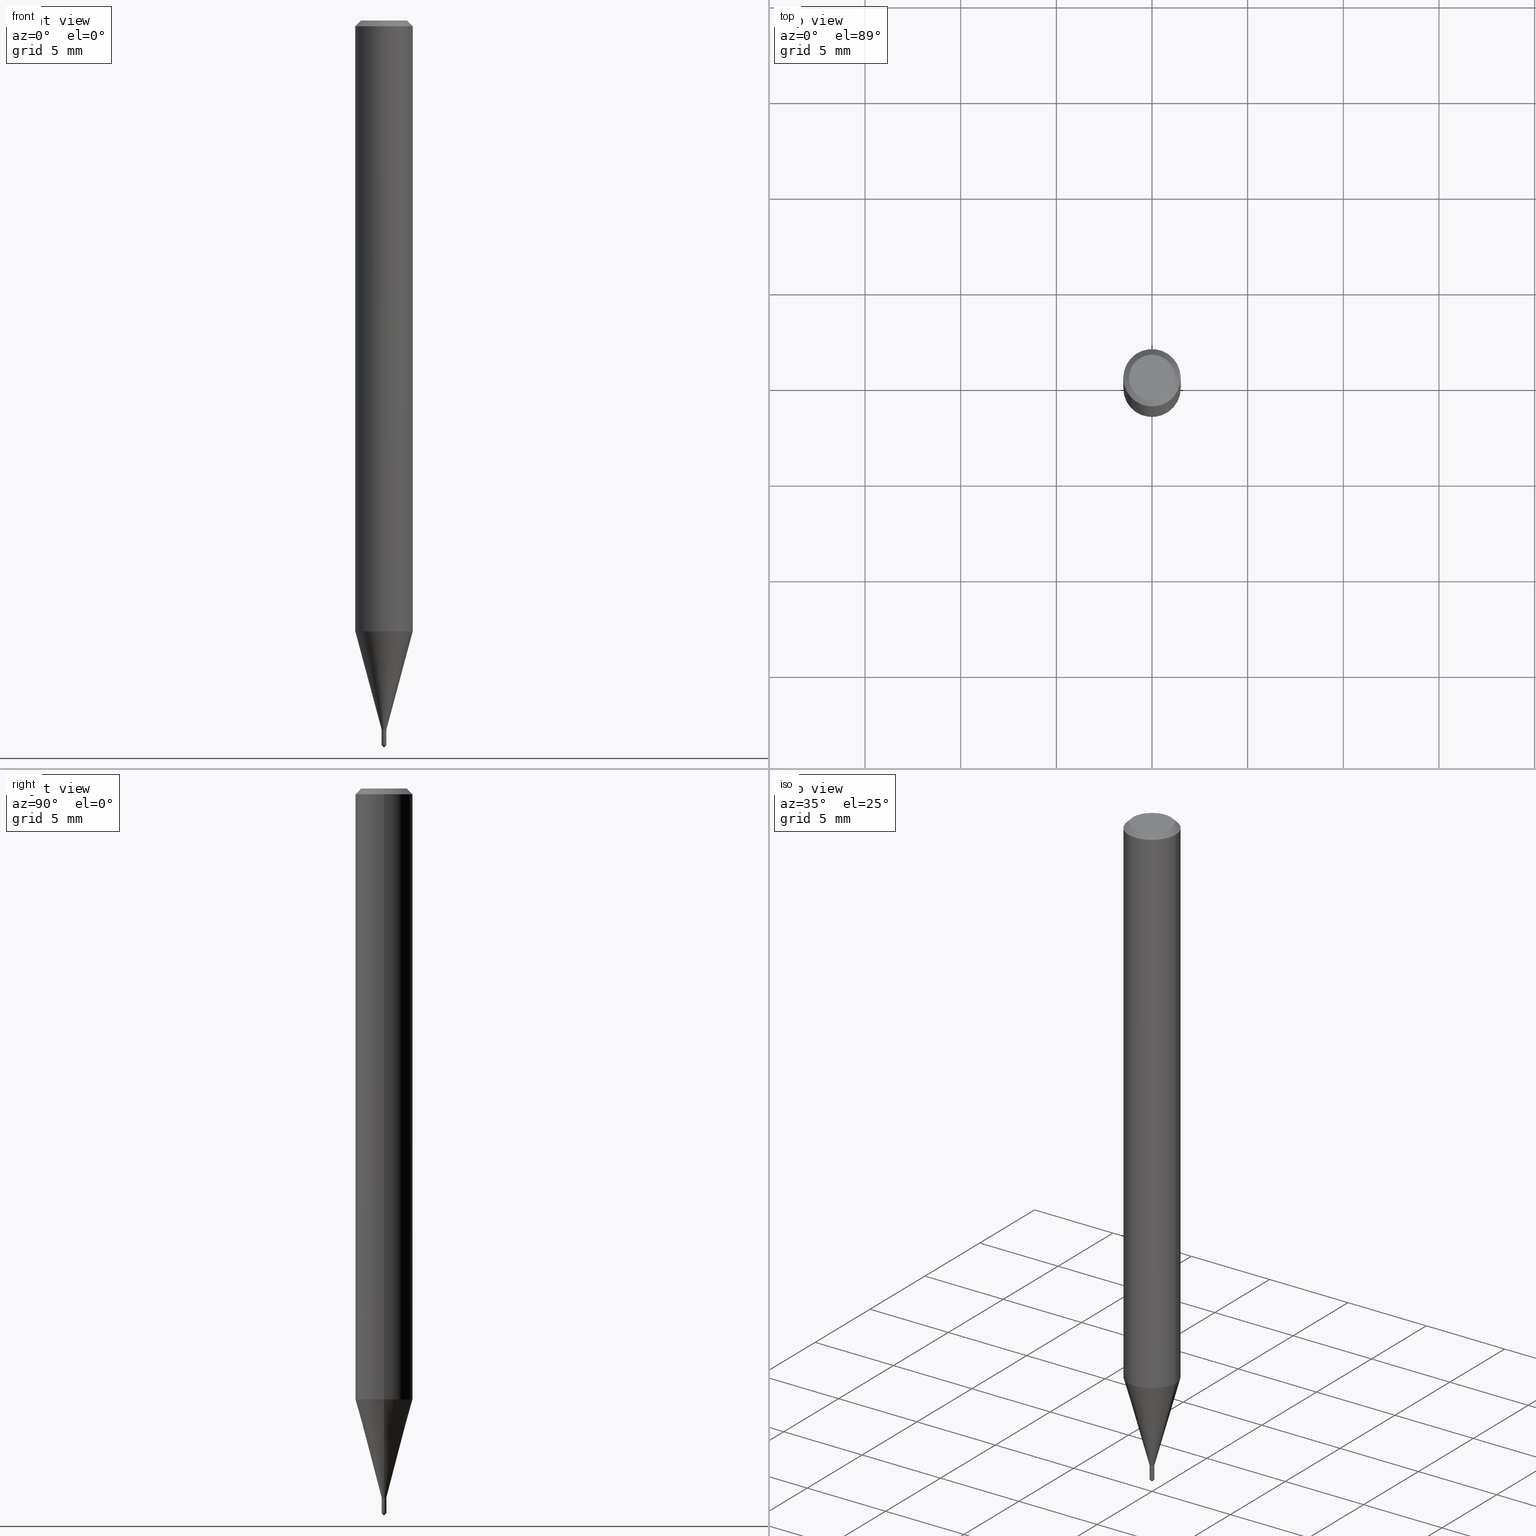
[diagram: canonical four-view strip — front | top / right | iso, engineering-drawing reading convention]
A machine part, canonical four-view strip (front | top / right | iso — engineering-drawing reading convention). The complete STEP part file that produces these views, byte-faithful:
ISO-10303-21;
HEADER;
FILE_DESCRIPTION (( 'STEP AP203' ),
    '1' );
FILE_NAME ('07033.STEP',
    '2024-04-23T19:20:42',
    ( '' ),
    ( '' ),
    'SwSTEP 2.0',
    'SolidWorks 2023',
    '' );
FILE_SCHEMA (( 'CONFIG_CONTROL_DESIGN' ));
ENDSEC;

DATA;
#1 = CALENDAR_DATE ( 2024, 23, 4 ) ;
#2 = CC_DESIGN_PERSON_AND_ORGANIZATION_ASSIGNMENT ( #152, #302, ( #73 ) ) ;
#3 = DIRECTION ( 'NONE',  ( -2.445468806185136597E-29, 3.491481338843145583E-15, 1.000000000000000000 ) ) ;
#4 = PERSON_AND_ORGANIZATION_ROLE ( 'classification_officer' ) ;
#5 = APPROVAL_PERSON_ORGANIZATION ( #418, #369, #118 ) ;
#6 = CARTESIAN_POINT ( 'NONE',  ( -0.05904999999999999832, 3.711095515056362547E-16, -0.01181000000000007565 ) ) ;
#7 = LINE ( 'NONE', #385, #121 ) ;
#8 = ADVANCED_FACE ( 'NONE', ( #34 ), #115, .T. ) ;
#9 = DIRECTION ( 'NONE',  ( 1.000000000000000000, -6.982962677686289588E-15, 0.000000000000000000 ) ) ;
#10 = DIRECTION ( 'NONE',  ( 2.445468806185136597E-29, -3.491481338843145583E-15, -1.000000000000000000 ) ) ;
#11 = AXIS2_PLACEMENT_3D ( 'NONE', #470, #462, #465 ) ;
#12 = VECTOR ( 'NONE', #53, 39.37007874015748143 ) ;
#13 = CARTESIAN_POINT ( 'NONE',  ( -9.506905849771238472E-28, 1.287285740973184145E-13, 37.87397874015748300 ) ) ;
#14 = VERTEX_POINT ( 'NONE', #303 ) ;
#15 = CARTESIAN_POINT ( 'NONE',  ( 3.648582361024890437E-29, -5.203777099372758603E-15, -1.491199999999999859 ) ) ;
#16 = ORIENTED_EDGE ( 'NONE', *, *, #458, .T. ) ;
#17 = LINE ( 'NONE', #48, #468 ) ;
#18 = ORIENTED_EDGE ( 'NONE', *, *, #438, .F. ) ;
#19 = AXIS2_PLACEMENT_3D ( 'NONE', #123, #162, #317 ) ;
#20 = CARTESIAN_POINT ( 'NONE',  ( 0.004399999999999999398, -5.130731827430000937E-15, -1.460699999999999443 ) ) ;
#21 = ORIENTED_EDGE ( 'NONE', *, *, #406, .T. ) ;
#22 = EDGE_CURVE ( 'NONE', #321, #323, #414, .T. ) ;
#23 = APPLICATION_PROTOCOL_DEFINITION ( 'international standard', 'config_control_design', 1994, #444 ) ;
#24 = CARTESIAN_POINT ( 'NONE',  ( 0.05904999999999999832, -4.463468013801466955E-16, -0.01181000000000007565 ) ) ;
#25 = ADVANCED_FACE ( 'NONE', ( #31 ), #174, .F. ) ;
#26 = ORIENTED_EDGE ( 'NONE', *, *, #289, .F. ) ;
#27 = AXIS2_PLACEMENT_3D ( 'NONE', #231, #112, #425 ) ;
#28 = LOCAL_TIME ( 15, 20, 42.00000000000000000, #78 ) ;
#29 = APPROVAL_STATUS ( 'not_yet_approved' ) ;
#30 = EDGE_CURVE ( 'NONE', #14, #338, #445, .T. ) ;
#31 = FACE_OUTER_BOUND ( 'NONE', #358, .T. ) ;
#32 = APPLICATION_PROTOCOL_DEFINITION ( 'international standard', 'config_control_design', 1994, #216 ) ;
#33 = ORIENTED_EDGE ( 'NONE', *, *, #77, .F. ) ;
#34 = FACE_OUTER_BOUND ( 'NONE', #408, .T. ) ;
#35 = APPROVAL_STATUS ( 'not_yet_approved' ) ;
#36 = LINE ( 'NONE', #388, #230 ) ;
#37 = ADVANCED_FACE ( 'NONE', ( #137 ), #293, .F. ) ;
#38 = FACE_OUTER_BOUND ( 'NONE', #51, .T. ) ;
#39 = COORDINATED_UNIVERSAL_TIME_OFFSET ( 5, 0, .BEHIND. ) ;
#40 = DIRECTION ( 'NONE',  ( 1.000000000000000000, -6.982962677686271444E-15, 0.000000000000000000 ) ) ;
#41 = CIRCLE ( 'NONE', #27, 0.004899999999999998107 ) ;
#42 = DIRECTION ( 'NONE',  ( 1.000000000000000000, -6.982962677686289588E-15, 0.000000000000000000 ) ) ;
#43 = FACE_OUTER_BOUND ( 'NONE', #109, .T. ) ;
#44 = EDGE_CURVE ( 'NONE', #397, #14, #254, .T. ) ;
#45 = FACE_OUTER_BOUND ( 'NONE', #207, .T. ) ;
#46 = VERTEX_POINT ( 'NONE', #335 ) ;
#47 = EDGE_CURVE ( 'NONE', #14, #323, #371, .T. ) ;
#48 = CARTESIAN_POINT ( 'NONE',  ( -0.004899999999999998107, 3.481659405224489566E-17, -2.410278194224902830E-31 ) ) ;
#49 = VERTEX_POINT ( 'NONE', #182 ) ;
#50 = AXIS2_PLACEMENT_3D ( 'NONE', #166, #282, #434 ) ;
#51 = EDGE_LOOP ( 'NONE', ( #367, #340, #202, #285 ) ) ;
#52 = CC_DESIGN_PERSON_AND_ORGANIZATION_ASSIGNMENT ( #474, #304, ( #132 ) ) ;
#53 = DIRECTION ( 'NONE',  ( -0.7071067811868112507, 7.493145998871307104E-15, 0.7071067811862837837 ) ) ;
#54 = DIRECTION ( 'NONE',  ( -1.000000000000000000, 6.982962677686266711E-15, 0.000000000000000000 ) ) ;
#55 = VERTEX_POINT ( 'NONE', #336 ) ;
#56 = DIRECTION ( 'NONE',  ( 1.000000000000000000, -6.982962677686289588E-15, 0.000000000000000000 ) ) ;
#57 = EDGE_CURVE ( 'NONE', #238, #442, #117, .T. ) ;
#58 = ORIENTED_EDGE ( 'NONE', *, *, #406, .F. ) ;
#59 = VERTEX_POINT ( 'NONE', #422 ) ;
#60 = DIRECTION ( 'NONE',  ( 1.000000000000000000, -6.982962677686265922E-15, 4.876176775795936353E-29 ) ) ;
#61 = ORIENTED_EDGE ( 'NONE', *, *, #136, .F. ) ;
#62 = CARTESIAN_POINT ( 'NONE',  ( 0.000000000000000000, 0.000000000000000000, 0.000000000000000000 ) ) ;
#63 = CARTESIAN_POINT ( 'NONE',  ( 3.572096285194628524E-29, -5.100006791648181685E-15, -1.460699999999999887 ) ) ;
#64 = AXIS2_PLACEMENT_3D ( 'NONE', #275, #467, #56 ) ;
#65 = CC_DESIGN_DATE_AND_TIME_ASSIGNMENT ( #111, #195, ( #122 ) ) ;
#66 = DIRECTION ( 'NONE',  ( 1.000000000000000000, -6.982962677686271444E-15, 0.000000000000000000 ) ) ;
#67 =( CONVERSION_BASED_UNIT ( 'INCH', #221 ) LENGTH_UNIT ( ) NAMED_UNIT ( #102 ) );
#68 = EDGE_LOOP ( 'NONE', ( #150, #134, #18, #466 ) ) ;
#69 = CALENDAR_DATE ( 2024, 23, 4 ) ;
#70 = DIRECTION ( 'NONE',  ( -2.507740191156117864E-29, 3.402305171297575552E-15, 1.000000000000000000 ) ) ;
#71 = ADVANCED_FACE ( 'NONE', ( #158 ), #451, .F. ) ;
#72 = CIRCLE ( 'NONE', #96, 0.004899999999999996372 ) ;
#73 = PRODUCT_DEFINITION_FORMATION_WITH_SPECIFIED_SOURCE ( 'ANY', '', #318, .NOT_KNOWN. ) ;
#74 = MANIFOLD_SOLID_BREP ( 'Body-Move/Copy2[1]', #402 ) ;
#75 = DIRECTION ( 'NONE',  ( -2.445468806185136877E-29, 3.491481338843145188E-15, 1.000000000000000000 ) ) ;
#76 = CARTESIAN_POINT ( 'NONE',  ( 3.572096285194627963E-29, -5.100006791648181685E-15, -1.460699999999999443 ) ) ;
#77 = EDGE_CURVE ( 'NONE', #49, #227, #179, .T. ) ;
#78 = COORDINATED_UNIVERSAL_TIME_OFFSET ( 5, 0, .BEHIND. ) ;
#79 = CARTESIAN_POINT ( 'NONE',  ( -0.05905000000000007465, 4.195754854663396902E-16, -2.904631170795525395E-30 ) ) ;
#80 = APPROVAL ( #29, 'UNSPECIFIED' ) ;
#81 = CIRCLE ( 'NONE', #370, 0.04724000000000000421 ) ;
#82 = DIRECTION ( 'NONE',  ( -2.445468806185136597E-29, 3.491481338843145583E-15, 1.000000000000000000 ) ) ;
#83 = DIRECTION ( 'NONE',  ( -2.507740191156118144E-29, 3.402305171297575158E-15, 1.000000000000000000 ) ) ;
#84 = EDGE_LOOP ( 'NONE', ( #375, #89, #26 ) ) ;
#85 = DIRECTION ( 'NONE',  ( 1.000000000000000000, -6.982962677686266711E-15, 0.000000000000000000 ) ) ;
#86 = CC_DESIGN_DATE_AND_TIME_ASSIGNMENT ( #310, #384, ( #132 ) ) ;
#87 = CARTESIAN_POINT ( 'NONE',  ( -0.004399999999999999398, -5.068742911274737565E-15, -1.460699999999999443 ) ) ;
#88 = CIRCLE ( 'NONE', #457, 0.05904999999999999832 ) ;
#89 = ORIENTED_EDGE ( 'NONE', *, *, #57, .T. ) ;
#90 = LINE ( 'NONE', #87, #12 ) ;
#91 = ORIENTED_EDGE ( 'NONE', *, *, #383, .T. ) ;
#92 = CARTESIAN_POINT ( 'NONE',  ( 0.004899999999999998107, -5.132477568099423229E-15, -1.460199999999999942 ) ) ;
#93 = ORIENTED_EDGE ( 'NONE', *, *, #316, .T. ) ;
#94 = EDGE_CURVE ( 'NONE', #288, #397, #7, .T. ) ;
#95 = DIRECTION ( 'NONE',  ( -2.445468806185136597E-29, 3.491481338843145583E-15, 1.000000000000000000 ) ) ;
#96 = AXIS2_PLACEMENT_3D ( 'NONE', #389, #239, #391 ) ;
#97 = AXIS2_PLACEMENT_3D ( 'NONE', #15, #322, #127 ) ;
#98 = DIRECTION ( 'NONE',  ( -2.445468806185136597E-29, 3.491481338843145583E-15, 1.000000000000000000 ) ) ;
#99 = DIRECTION ( 'NONE',  ( 1.000000000000000000, -6.982962677686265922E-15, 4.876176775795935793E-29 ) ) ;
#100 = EDGE_CURVE ( 'NONE', #55, #488, #36, .T. ) ;
#101 = LINE ( 'NONE', #255, #324 ) ;
#102 = DIMENSIONAL_EXPONENTS ( 1.000000000000000000, 0.000000000000000000, 0.000000000000000000, 0.000000000000000000, 0.000000000000000000, 0.000000000000000000, 0.000000000000000000 ) ;
#103 = ORIENTED_EDGE ( 'NONE', *, *, #473, .F. ) ;
#104 = PERSON_AND_ORGANIZATION ( #235, #423 ) ;
#105 = EDGE_LOOP ( 'NONE', ( #416, #163, #110, #103 ) ) ;
#106 = VECTOR ( 'NONE', #284, 39.37007874015748854 ) ;
#107 = CC_DESIGN_APPROVAL ( #369, ( #122 ) ) ;
#108 = LINE ( 'NONE', #437, #128 ) ;
#109 = EDGE_LOOP ( 'NONE', ( #319, #471, #259, #283 ) ) ;
#110 = ORIENTED_EDGE ( 'NONE', *, *, #450, .F. ) ;
#111 = DATE_AND_TIME ( #156, #28 ) ;
#112 = DIRECTION ( 'NONE',  ( -2.445468806185136597E-29, 3.491481338843145583E-15, 1.000000000000000000 ) ) ;
#113 = SECURITY_CLASSIFICATION_LEVEL ( 'unclassified' ) ;
#114 = DIRECTION ( 'NONE',  ( -6.982962677686265922E-15, -1.000000000000000000, 0.000000000000000000 ) ) ;
#115 = CONICAL_SURFACE ( 'NONE', #485, 0.05904999999999999832, 0.7853981633974450594 ) ;
#116 = LOCAL_TIME ( 15, 20, 42.00000000000000000, #345 ) ;
#117 = LINE ( 'NONE', #349, #267 ) ;
#118 = APPROVAL_ROLE ( '' ) ;
#119 = LINE ( 'NONE', #271, #106 ) ;
#120 = DIRECTION ( 'NONE',  ( 1.000000000000000000, -6.982962677686196502E-15, 0.000000000000000000 ) ) ;
#121 = VECTOR ( 'NONE', #75, 39.37007874015748143 ) ;
#122 = SECURITY_CLASSIFICATION ( '', '', #113 ) ;
#123 = CARTESIAN_POINT ( 'NONE',  ( 3.568428081985351240E-29, -5.094769569639917175E-15, -1.459199999999999831 ) ) ;
#124 = CARTESIAN_POINT ( 'NONE',  ( 0.05904999999999999832, -4.535783407291118600E-16, -0.01181000000000007565 ) ) ;
#125 = CARTESIAN_POINT ( 'NONE',  ( 2.888098660104664642E-31, -4.123439461173780879E-17, -0.01181000000000007565 ) ) ;
#126 = ORIENTED_EDGE ( 'NONE', *, *, #461, .F. ) ;
#127 = DIRECTION ( 'NONE',  ( -6.982962677686265922E-15, -1.000000000000000000, 0.000000000000000000 ) ) ;
#128 = VECTOR ( 'NONE', #290, 39.37007874015748143 ) ;
#129 = ORIENTED_EDGE ( 'NONE', *, *, #44, .T. ) ;
#130 = DIRECTION ( 'NONE',  ( 1.000000000000000000, -6.982962677686266711E-15, 4.876176775795936353E-29 ) ) ;
#131 = ORIENTED_EDGE ( 'NONE', *, *, #136, .T. ) ;
#132 = PRODUCT_DEFINITION ( 'UNKNOWN', '', #73, #176 ) ;
#133 = DIRECTION ( 'NONE',  ( 1.000000000000000000, -6.982962677686266711E-15, 0.000000000000000000 ) ) ;
#134 = ORIENTED_EDGE ( 'NONE', *, *, #400, .T. ) ;
#135 = DIRECTION ( 'NONE',  ( 0.000000000000000000, 0.000000000000000000, 1.000000000000000000 ) ) ;
#136 = EDGE_CURVE ( 'NONE', #211, #186, #353, .T. ) ;
#137 = FACE_OUTER_BOUND ( 'NONE', #206, .T. ) ;
#138 = CONICAL_SURFACE ( 'NONE', #291, 0.004399999999999999398, 0.7853981633978213139 ) ;
#139 = CIRCLE ( 'NONE', #161, 0.04724000000000000421 ) ;
#140 =( NAMED_UNIT ( * ) SI_UNIT ( $, .STERADIAN. ) SOLID_ANGLE_UNIT ( ) );
#141 = CC_DESIGN_PERSON_AND_ORGANIZATION_ASSIGNMENT ( #190, #4, ( #122 ) ) ;
#142 = ORIENTED_EDGE ( 'NONE', *, *, #170, .T. ) ;
#143 = DIRECTION ( 'NONE',  ( -2.445468806185136877E-29, 3.491481338843145188E-15, 1.000000000000000000 ) ) ;
#144 = COORDINATED_UNIVERSAL_TIME_OFFSET ( 5, 0, .BEHIND. ) ;
#145 = ORIENTED_EDGE ( 'NONE', *, *, #30, .F. ) ;
#146 = FACE_OUTER_BOUND ( 'NONE', #165, .T. ) ;
#147 = DIRECTION ( 'NONE',  ( 6.982962677686265922E-15, 1.000000000000000000, -3.402305171297575552E-15 ) ) ;
#148 = ADVANCED_FACE ( 'NONE', ( #272 ), #203, .T. ) ;
#149 = APPROVAL_ROLE ( '' ) ;
#150 = ORIENTED_EDGE ( 'NONE', *, *, #77, .T. ) ;
#151 = CARTESIAN_POINT ( 'NONE',  ( 3.568428081985351240E-29, -5.094769569639917175E-15, -1.459199999999999831 ) ) ;
#152 = PERSON_AND_ORGANIZATION ( #235, #423 ) ;
#153 = DIRECTION ( 'NONE',  ( 1.000000000000000000, -6.982962677686266711E-15, 4.876176775795936353E-29 ) ) ;
#154 = AXIS2_PLACEMENT_3D ( 'NONE', #346, #3, #153 ) ;
#155 = CIRCLE ( 'NONE', #50, 0.004899999999999998107 ) ;
#156 = CALENDAR_DATE ( 2024, 23, 4 ) ;
#157 = DIRECTION ( 'NONE',  ( -2.445468806185136597E-29, 3.491481338843145583E-15, 1.000000000000000000 ) ) ;
#158 = FACE_OUTER_BOUND ( 'NONE', #355, .T. ) ;
#159 = DIRECTION ( 'NONE',  ( -1.000000000000000000, 6.982962677686265922E-15, -4.876176775795935793E-29 ) ) ;
#160 = CONICAL_SURFACE ( 'NONE', #363, 39.37007874015645825, 0.7853981633974352894 ) ;
#161 = AXIS2_PLACEMENT_3D ( 'NONE', #249, #98, #253 ) ;
#162 = DIRECTION ( 'NONE',  ( -2.445468806185136597E-29, 3.491481338843145583E-15, 1.000000000000000000 ) ) ;
#163 = ORIENTED_EDGE ( 'NONE', *, *, #100, .T. ) ;
#164 = FACE_OUTER_BOUND ( 'NONE', #105, .T. ) ;
#165 = EDGE_LOOP ( 'NONE', ( #257, #430, #362, #326 ) ) ;
#166 = CARTESIAN_POINT ( 'NONE',  ( 3.570873550791536843E-29, -5.098261050978760971E-15, -1.460199999999999942 ) ) ;
#167 = EDGE_CURVE ( 'NONE', #59, #288, #41, .T. ) ;
#168 = ORIENTED_EDGE ( 'NONE', *, *, #47, .F. ) ;
#169 = CARTESIAN_POINT ( 'NONE',  ( -0.05905000000000015098, -3.969598695798013952E-15, -1.257109448770144855 ) ) ;
#170 = EDGE_CURVE ( 'NONE', #227, #49, #194, .T. ) ;
#171 = DIRECTION ( 'NONE',  ( -2.445468806185136597E-29, 3.491481338843145583E-15, 1.000000000000000000 ) ) ;
#172 = ORIENTED_EDGE ( 'NONE', *, *, #327, .F. ) ;
#173 = PERSON_AND_ORGANIZATION ( #235, #423 ) ;
#174 = PLANE ( 'NONE',  #421 ) ;
#175 = EDGE_CURVE ( 'NONE', #338, #14, #454, .T. ) ;
#176 = DESIGN_CONTEXT ( 'detailed design', #216, 'design' ) ;
#177 = VECTOR ( 'NONE', #368, 39.37007874015748143 ) ;
#178 = EDGE_LOOP ( 'NONE', ( #382, #142, #93, #447 ) ) ;
#179 = CIRCLE ( 'NONE', #333, 0.004399999999999999398 ) ;
#180 = CIRCLE ( 'NONE', #97, 0.004899999999999996372 ) ;
#181 = DIRECTION ( 'NONE',  ( -6.982962677686265922E-15, -1.000000000000000000, 0.000000000000000000 ) ) ;
#182 = CARTESIAN_POINT ( 'NONE',  ( 0.004399999999999999398, -5.130731827430000937E-15, -1.460699999999999443 ) ) ;
#183 = CALENDAR_DATE ( 2024, 23, 4 ) ;
#184 = DIRECTION ( 'NONE',  ( 0.7071067811865452413, -7.319954787623248157E-15, -0.7071067811865497932 ) ) ;
#185 = EDGE_CURVE ( 'NONE', #338, #186, #426, .T. ) ;
#186 = VERTEX_POINT ( 'NONE', #196 ) ;
#187 = VECTOR ( 'NONE', #361, 39.37007874015748143 ) ;
#188 = LOCAL_TIME ( 15, 20, 42.00000000000000000, #144 ) ;
#189 = DIRECTION ( 'NONE',  ( -2.445468806185136597E-29, 3.491481338843145583E-15, 1.000000000000000000 ) ) ;
#190 = PERSON_AND_ORGANIZATION ( #235, #423 ) ;
#191 = CARTESIAN_POINT ( 'NONE',  ( 3.572096285194627963E-29, -5.100006791648181685E-15, -1.460699999999999443 ) ) ;
#192 = PERSON_AND_ORGANIZATION ( #235, #423 ) ;
#193 = CARTESIAN_POINT ( 'NONE',  ( 3.568428081985351240E-29, -5.094769569639917175E-15, -1.459199999999999831 ) ) ;
#194 = CIRCLE ( 'NONE', #273, 0.004399999999999999398 ) ;
#195 = DATE_TIME_ROLE ( 'classification_date' ) ;
#196 = CARTESIAN_POINT ( 'NONE',  ( -0.05904999999999999832, -1.795628802471705305E-15, -0.01181000000000007565 ) ) ;
#197 = CARTESIAN_POINT ( 'NONE',  ( 4.132873053354867254E-48, -5.900647395337818946E-34, -1.690012582823346072E-19 ) ) ;
#198 = UNCERTAINTY_MEASURE_WITH_UNIT (LENGTH_MEASURE( 1.000000000000000082E-05 ), #67, 'distance_accuracy_value', 'NONE');
#199 = ADVANCED_FACE ( 'NONE', ( #424 ), #138, .T. ) ;
#200 = FACE_OUTER_BOUND ( 'NONE', #68, .T. ) ;
#201 = CC_DESIGN_PERSON_AND_ORGANIZATION_ASSIGNMENT ( #173, #330, ( #318 ) ) ;
#202 = ORIENTED_EDGE ( 'NONE', *, *, #473, .T. ) ;
#203 = CONICAL_SURFACE ( 'NONE', #392, 0.004899999999999998107, 0.2617993877991497964 ) ;
#204 = LOCAL_TIME ( 15, 20, 42.00000000000000000, #228 ) ;
#205 = DIRECTION ( 'NONE',  ( -2.445468806185136877E-29, 3.491481338843145188E-15, 1.000000000000000000 ) ) ;
#206 = EDGE_LOOP ( 'NONE', ( #33, #472 ) ) ;
#207 = EDGE_LOOP ( 'NONE', ( #479, #217, #131, #390 ) ) ;
#208 = PRODUCT_DEFINITION_SHAPE ( 'NONE', 'NONE',  #132 ) ;
#209 = DIRECTION ( 'NONE',  ( -6.982962677686265922E-15, -1.000000000000000000, 0.000000000000000000 ) ) ;
#210 = DIRECTION ( 'NONE',  ( -6.982962677686265922E-15, -1.000000000000000000, 0.000000000000000000 ) ) ;
#211 = VERTEX_POINT ( 'NONE', #264 ) ;
#212 = FACE_OUTER_BOUND ( 'NONE', #393, .T. ) ;
#213 = AXIS2_PLACEMENT_3D ( 'NONE', #197, #419, #159 ) ;
#214 = APPROVAL_PERSON_ORGANIZATION ( #104, #80, #372 ) ;
#215 = ORIENTED_EDGE ( 'NONE', *, *, #286, .T. ) ;
#216 = APPLICATION_CONTEXT ( 'configuration controlled 3d designs of mechanical parts and assemblies' ) ;
#217 = ORIENTED_EDGE ( 'NONE', *, *, #274, .F. ) ;
#218 = ADVANCED_FACE ( 'NONE', ( #38 ), #490, .T. ) ;
#219 = DIRECTION ( 'NONE',  ( 1.000000000000000000, -6.982962677686265922E-15, 4.876176775795936353E-29 ) ) ;
#220 = DIRECTION ( 'NONE',  ( 2.445468806185136597E-29, -3.491481338843145583E-15, -1.000000000000000000 ) ) ;
#221 = LENGTH_MEASURE_WITH_UNIT ( LENGTH_MEASURE( 0.02539999999999999897 ), #296 );
#222 = CARTESIAN_POINT ( 'NONE',  ( 0.004899999999999998107, -5.128986086760580222E-15, -1.459199999999999831 ) ) ;
#223 = CC_DESIGN_APPROVAL ( #80, ( #132 ) ) ;
#224 = ORIENTED_EDGE ( 'NONE', *, *, #313, .T. ) ;
#225 = CARTESIAN_POINT ( 'NONE',  ( 3.572096285194628524E-29, -5.100006791648181685E-15, -1.460699999999999887 ) ) ;
#226 = ADVANCED_FACE ( 'NONE', ( #43 ), #229, .T. ) ;
#227 = VERTEX_POINT ( 'NONE', #307 ) ;
#228 = COORDINATED_UNIVERSAL_TIME_OFFSET ( 5, 0, .BEHIND. ) ;
#229 = CYLINDRICAL_SURFACE ( 'NONE', #154, 0.05905000000000007465 ) ;
#230 = VECTOR ( 'NONE', #70, 39.37007874015748143 ) ;
#231 = CARTESIAN_POINT ( 'NONE',  ( 3.570873550791536843E-29, -5.098261050978760971E-15, -1.460199999999999942 ) ) ;
#232 = CARTESIAN_POINT ( 'NONE',  ( 3.572096285194627963E-29, -5.100006791648181685E-15, -1.460699999999999443 ) ) ;
#233 = CARTESIAN_POINT ( 'NONE',  ( 3.074221942927981307E-29, -4.389174181264353445E-15, -1.257109448770144855 ) ) ;
#234 = VECTOR ( 'NONE', #312, 39.37007874015748143 ) ;
#235 = PERSON ( 'UNSPECIFIED', 'UNSPECIFIED', 'UNSPECIFIED', ('UNSPECIFIED'), ('UNSPECIFIED'), ('UNSPECIFIED') ) ;
#236 = CARTESIAN_POINT ( 'NONE',  ( 3.572096285194628524E-29, -5.100006791648181685E-15, -1.460699999999999887 ) ) ;
#237 = CARTESIAN_POINT ( 'NONE',  ( 0.04724000000000000421, -3.852183633974369345E-16, -3.380025165621689721E-19 ) ) ;
#238 = VERTEX_POINT ( 'NONE', #305 ) ;
#239 = DIRECTION ( 'NONE',  ( -2.507740191156118144E-29, 3.402305171297575158E-15, 1.000000000000000000 ) ) ;
#240 = ORIENTED_EDGE ( 'NONE', *, *, #167, .T. ) ;
#241 = AXIS2_PLACEMENT_3D ( 'NONE', #233, #157, #40 ) ;
#242 = CC_DESIGN_APPROVAL ( #278, ( #73 ) ) ;
#243 = AXIS2_PLACEMENT_3D ( 'NONE', #225, #404, #181 ) ;
#244 = FACE_OUTER_BOUND ( 'NONE', #359, .T. ) ;
#245 = ORIENTED_EDGE ( 'NONE', *, *, #44, .F. ) ;
#246 = CARTESIAN_POINT ( 'NONE',  ( 2.888098660104664642E-31, -4.123439461173780879E-17, -0.01181000000000007565 ) ) ;
#247 = EDGE_LOOP ( 'NONE', ( #91, #399, #145, #245 ) ) ;
#248 = CARTESIAN_POINT ( 'NONE',  ( -9.506905849771238472E-28, 1.287285740973184145E-13, 37.87397874015748300 ) ) ;
#249 = CARTESIAN_POINT ( 'NONE',  ( 8.265746106709734507E-48, -1.180129479067563789E-33, -3.380025165646692144E-19 ) ) ;
#250 = CIRCLE ( 'NONE', #11, 0.004899999999999998107 ) ;
#251 = CIRCLE ( 'NONE', #243, 0.004899999999999999842 ) ;
#252 = ORIENTED_EDGE ( 'NONE', *, *, #175, .F. ) ;
#253 = DIRECTION ( 'NONE',  ( 1.000000000000000000, -6.982962677686266711E-15, 4.876185090822587894E-29 ) ) ;
#254 = LINE ( 'NONE', #222, #177 ) ;
#255 = CARTESIAN_POINT ( 'NONE',  ( -0.004899999999999998107, -5.059952975587672945E-15, -1.459199999999999831 ) ) ;
#256 = EDGE_LOOP ( 'NONE', ( #172, #240, #295, #405 ) ) ;
#257 = ORIENTED_EDGE ( 'NONE', *, *, #438, .T. ) ;
#258 = AXIS2_PLACEMENT_3D ( 'NONE', #236, #379, #114 ) ;
#259 = ORIENTED_EDGE ( 'NONE', *, *, #47, .T. ) ;
#260 = LOCAL_TIME ( 15, 20, 42.00000000000000000, #39 ) ;
#261 = FACE_OUTER_BOUND ( 'NONE', #256, .T. ) ;
#262 = ORIENTED_EDGE ( 'NONE', *, *, #57, .F. ) ;
#263 = SHAPE_DEFINITION_REPRESENTATION ( #208, #268 ) ;
#264 = CARTESIAN_POINT ( 'NONE',  ( -0.04724000000000000421, 3.504923541997677355E-16, -3.380025165670481712E-19 ) ) ;
#265 = FACE_OUTER_BOUND ( 'NONE', #247, .T. ) ;
#266 = ADVANCED_FACE ( 'NONE', ( #265 ), #387, .T. ) ;
#267 = VECTOR ( 'NONE', #314, 39.37007874015748854 ) ;
#268 = ADVANCED_BREP_SHAPE_REPRESENTATION ( '07033', ( #74, #417, #292 ), #455 ) ;
#269 = CIRCLE ( 'NONE', #19, 0.004899999999999998107 ) ;
#270 = DIRECTION ( 'NONE',  ( 1.000000000000000000, -6.982962677686196502E-15, 0.000000000000000000 ) ) ;
#271 = CARTESIAN_POINT ( 'NONE',  ( 3.753425320352740222E-29, -5.090188766778301737E-15, -1.496099999999999985 ) ) ;
#272 = FACE_OUTER_BOUND ( 'NONE', #331, .T. ) ;
#273 = AXIS2_PLACEMENT_3D ( 'NONE', #76, #189, #9 ) ;
#274 = EDGE_CURVE ( 'NONE', #211, #321, #81, .T. ) ;
#275 = CARTESIAN_POINT ( 'NONE',  ( 3.572096285194627963E-29, -5.100006791648181685E-15, -1.460699999999999443 ) ) ;
#276 = DIRECTION ( 'NONE',  ( -2.445468806185136597E-29, 3.491481338843145583E-15, 1.000000000000000000 ) ) ;
#277 = DIRECTION ( 'NONE',  ( -2.507740191156118144E-29, 3.402305171297575158E-15, 1.000000000000000000 ) ) ;
#278 = APPROVAL ( #35, 'UNSPECIFIED' ) ;
#279 = ORIENTED_EDGE ( 'NONE', *, *, #458, .F. ) ;
#280 = CONICAL_SURFACE ( 'NONE', #64, 0.004399999999999999398, 0.7853981633978213139 ) ;
#281 = CC_DESIGN_SECURITY_CLASSIFICATION ( #122, ( #73 ) ) ;
#282 = DIRECTION ( 'NONE',  ( -2.445468806185136597E-29, 3.491481338843145583E-15, 1.000000000000000000 ) ) ;
#283 = ORIENTED_EDGE ( 'NONE', *, *, #440, .F. ) ;
#284 = DIRECTION ( 'NONE',  ( 5.024295867787996125E-15, 0.7071067811865406894, 0.7071067811865542341 ) ) ;
#285 = ORIENTED_EDGE ( 'NONE', *, *, #313, .F. ) ;
#286 = EDGE_CURVE ( 'NONE', #238, #55, #119, .T. ) ;
#287 = CARTESIAN_POINT ( 'NONE',  ( -3.421651712062619307E-17, -0.004900000000005199675, -1.491199999999999859 ) ) ;
#288 = VERTEX_POINT ( 'NONE', #92 ) ;
#289 = EDGE_CURVE ( 'NONE', #55, #442, #72, .T. ) ;
#290 = DIRECTION ( 'NONE',  ( -2.507740191156117864E-29, 3.402305171297575552E-15, 1.000000000000000000 ) ) ;
#291 = AXIS2_PLACEMENT_3D ( 'NONE', #232, #82, #42 ) ;
#292 = AXIS2_PLACEMENT_3D ( 'NONE', #62, #135, #366 ) ;
#293 = PLANE ( 'NONE',  #394 ) ;
#294 = CARTESIAN_POINT ( 'NONE',  ( 3.481659405228136815E-17, 0.004899999999994899755, -1.460699999999999887 ) ) ;
#295 = ORIENTED_EDGE ( 'NONE', *, *, #94, .T. ) ;
#296 =( LENGTH_UNIT ( ) NAMED_UNIT ( * ) SI_UNIT ( $, .METRE. ) );
#297 = CARTESIAN_POINT ( 'NONE',  ( 2.888098660104664642E-31, -4.123439461173780879E-17, -0.01181000000000007565 ) ) ;
#298 = CC_DESIGN_PERSON_AND_ORGANIZATION_ASSIGNMENT ( #348, #448, ( #73 ) ) ;
#299 = DIRECTION ( 'NONE',  ( -0.2588190451025211281, 5.211531920934548675E-15, 0.9659258262890682012 ) ) ;
#300 = CONICAL_SURFACE ( 'NONE', #315, 0.05904999999999999832, 0.7853981633974450594 ) ;
#301 = DIRECTION ( 'NONE',  ( -2.445468806185136597E-29, 3.491481338843145583E-15, 1.000000000000000000 ) ) ;
#302 = PERSON_AND_ORGANIZATION_ROLE ( 'creator' ) ;
#303 = CARTESIAN_POINT ( 'NONE',  ( 0.05905000000000015098, -4.801518127381729154E-15, -1.257109448770144855 ) ) ;
#304 = PERSON_AND_ORGANIZATION_ROLE ( 'creator' ) ;
#305 = CARTESIAN_POINT ( 'NONE',  ( 3.751830099988668308E-29, -5.090188766778301737E-15, -1.496099999999999985 ) ) ;
#306 = CALENDAR_DATE ( 2024, 23, 4 ) ;
#307 = CARTESIAN_POINT ( 'NONE',  ( -0.004399999999999999398, -5.066093684100626364E-15, -1.460699999999999443 ) ) ;
#308 = VECTOR ( 'NONE', #386, 39.37007874015748143 ) ;
#309 = AXIS2_PLACEMENT_3D ( 'NONE', #354, #171, #130 ) ;
#310 = DATE_AND_TIME ( #69, #260 ) ;
#311 = CARTESIAN_POINT ( 'NONE',  ( 8.265746106709734507E-48, -1.180129479067563789E-33, -3.380025165646692144E-19 ) ) ;
#312 = DIRECTION ( 'NONE',  ( -0.7071067811865452413, 2.468850131082233000E-15, -0.7071067811865497932 ) ) ;
#313 = EDGE_CURVE ( 'NONE', #488, #46, #439, .T. ) ;
#314 = DIRECTION ( 'NONE',  ( -4.937700262164483356E-15, -0.7071067811865358044, 0.7071067811865591191 ) ) ;
#315 = AXIS2_PLACEMENT_3D ( 'NONE', #325, #10, #54 ) ;
#316 = EDGE_CURVE ( 'NONE', #49, #288, #428, .T. ) ;
#317 = DIRECTION ( 'NONE',  ( 1.000000000000000000, -6.982962677686196502E-15, 0.000000000000000000 ) ) ;
#318 = PRODUCT ( '07033', '07033', '', ( #410 ) ) ;
#319 = ORIENTED_EDGE ( 'NONE', *, *, #185, .F. ) ;
#320 = CARTESIAN_POINT ( 'NONE',  ( 3.572096285194628524E-29, -5.100006791648181685E-15, -1.460699999999999887 ) ) ;
#321 = VERTEX_POINT ( 'NONE', #237 ) ;
#322 = DIRECTION ( 'NONE',  ( -2.507740191156118144E-29, 3.402305171297575158E-15, 1.000000000000000000 ) ) ;
#323 = VERTEX_POINT ( 'NONE', #124 ) ;
#324 = VECTOR ( 'NONE', #299, 39.37007874015748143 ) ;
#325 = CARTESIAN_POINT ( 'NONE',  ( 2.888098660104664642E-31, -4.123439461173780879E-17, -0.01181000000000007565 ) ) ;
#326 = ORIENTED_EDGE ( 'NONE', *, *, #94, .F. ) ;
#327 = EDGE_CURVE ( 'NONE', #59, #469, #17, .T. ) ;
#328 = ORIENTED_EDGE ( 'NONE', *, *, #274, .T. ) ;
#329 = ADVANCED_FACE ( 'NONE', ( #436 ), #378, .T. ) ;
#330 = PERSON_AND_ORGANIZATION_ROLE ( 'design_owner' ) ;
#331 = EDGE_LOOP ( 'NONE', ( #126, #365, #129, #252 ) ) ;
#332 = VECTOR ( 'NONE', #184, 39.37007874015748143 ) ;
#333 = AXIS2_PLACEMENT_3D ( 'NONE', #191, #381, #460 ) ;
#334 = AXIS2_PLACEMENT_3D ( 'NONE', #415, #95, #219 ) ;
#335 = CARTESIAN_POINT ( 'NONE',  ( -3.421651712062698194E-17, -0.004900000000005099061, -1.460699999999999887 ) ) ;
#336 = CARTESIAN_POINT ( 'NONE',  ( 3.481659405228136815E-17, 0.004899999999994793069, -1.491199999999999859 ) ) ;
#337 = DATE_AND_TIME ( #183, #188 ) ;
#338 = VERTEX_POINT ( 'NONE', #169 ) ;
#339 = AXIS2_PLACEMENT_3D ( 'NONE', #320, #429, #210 ) ;
#340 = ORIENTED_EDGE ( 'NONE', *, *, #289, .T. ) ;
#341 = AXIS2_PLACEMENT_3D ( 'NONE', #360, #277, #209 ) ;
#342 = ADVANCED_FACE ( 'NONE', ( #45 ), #300, .T. ) ;
#343 = DIRECTION ( 'NONE',  ( -2.445468806185136597E-29, 3.491481338843145583E-15, 1.000000000000000000 ) ) ;
#344 = ADVANCED_FACE ( 'NONE', ( #244 ), #160, .T. ) ;
#345 = COORDINATED_UNIVERSAL_TIME_OFFSET ( 5, 0, .BEHIND. ) ;
#346 = CARTESIAN_POINT ( 'NONE',  ( 0.000000000000000000, 0.000000000000000000, 0.000000000000000000 ) ) ;
#347 = ORIENTED_EDGE ( 'NONE', *, *, #30, .T. ) ;
#348 = PERSON_AND_ORGANIZATION ( #235, #423 ) ;
#349 = CARTESIAN_POINT ( 'NONE',  ( 3.569910475934442376E-29, -5.350708022645931072E-15, -1.496099999999999985 ) ) ;
#350 = APPROVAL_PERSON_ORGANIZATION ( #192, #278, #149 ) ;
#351 = DIRECTION ( 'NONE',  ( -2.445468806185136597E-29, 3.491481338843145583E-15, 1.000000000000000000 ) ) ;
#352 = ADVANCED_FACE ( 'NONE', ( #200 ), #280, .T. ) ;
#353 = LINE ( 'NONE', #6, #234 ) ;
#354 = CARTESIAN_POINT ( 'NONE',  ( 0.000000000000000000, 0.000000000000000000, 0.000000000000000000 ) ) ;
#355 = EDGE_LOOP ( 'NONE', ( #328, #16 ) ) ;
#356 = EDGE_CURVE ( 'NONE', #469, #397, #250, .T. ) ;
#357 = DIRECTION ( 'NONE',  ( -6.982962677686266711E-15, -1.000000000000000000, 3.552713678800593226E-15 ) ) ;
#358 = EDGE_LOOP ( 'NONE', ( #373, #224 ) ) ;
#359 = EDGE_LOOP ( 'NONE', ( #262, #215, #464 ) ) ;
#360 = CARTESIAN_POINT ( 'NONE',  ( 3.572096285194628524E-29, -5.100006791648181685E-15, -1.460699999999999887 ) ) ;
#361 = DIRECTION ( 'NONE',  ( 0.7071067811868112507, -2.468850131085019257E-15, 0.7071067811862837837 ) ) ;
#362 = ORIENTED_EDGE ( 'NONE', *, *, #383, .F. ) ;
#363 = AXIS2_PLACEMENT_3D ( 'NONE', #13, #364, #401 ) ;
#364 = DIRECTION ( 'NONE',  ( -2.507740191156118144E-29, 3.402305171297575158E-15, 1.000000000000000000 ) ) ;
#365 = ORIENTED_EDGE ( 'NONE', *, *, #356, .T. ) ;
#366 = DIRECTION ( 'NONE',  ( 1.000000000000000000, 0.000000000000000000, 0.000000000000000000 ) ) ;
#367 = ORIENTED_EDGE ( 'NONE', *, *, #100, .F. ) ;
#368 = DIRECTION ( 'NONE',  ( 0.2588190451025211281, 1.565188264969623940E-15, 0.9659258262890682012 ) ) ;
#369 = APPROVAL ( #380, 'UNSPECIFIED' ) ;
#370 = AXIS2_PLACEMENT_3D ( 'NONE', #311, #351, #459 ) ;
#371 = LINE ( 'NONE', #481, #476 ) ;
#372 = APPROVAL_ROLE ( '' ) ;
#373 = ORIENTED_EDGE ( 'NONE', *, *, #450, .T. ) ;
#374 = CARTESIAN_POINT ( 'NONE',  ( 0.000000000000000000, 0.000000000000000000, 0.000000000000000000 ) ) ;
#375 = ORIENTED_EDGE ( 'NONE', *, *, #286, .F. ) ;
#376 = ADVANCED_FACE ( 'NONE', ( #212 ), #396, .T. ) ;
#377 = APPROVAL_DATE_TIME ( #486, #278 ) ;
#378 = CONICAL_SURFACE ( 'NONE', #432, 39.37007874015645825, 0.7853981633974352894 ) ;
#379 = DIRECTION ( 'NONE',  ( -2.507740191156118144E-29, 3.402305171297575158E-15, 1.000000000000000000 ) ) ;
#380 = APPROVAL_STATUS ( 'not_yet_approved' ) ;
#381 = DIRECTION ( 'NONE',  ( -2.445468806185136597E-29, 3.491481338843145583E-15, 1.000000000000000000 ) ) ;
#382 = ORIENTED_EDGE ( 'NONE', *, *, #400, .F. ) ;
#383 = EDGE_CURVE ( 'NONE', #397, #469, #269, .T. ) ;
#384 = DATE_TIME_ROLE ( 'creation_date' ) ;
#385 = CARTESIAN_POINT ( 'NONE',  ( 0.004899999999999998107, -3.421651712066269022E-17, 2.389326620140007827E-31 ) ) ;
#386 = DIRECTION ( 'NONE',  ( -2.445468806185136877E-29, 3.491481338843145188E-15, 1.000000000000000000 ) ) ;
#387 = CONICAL_SURFACE ( 'NONE', #403, 0.004899999999999998107, 0.2617993877991497964 ) ;
#388 = CARTESIAN_POINT ( 'NONE',  ( 3.481659405228061010E-17, 0.004899999999994898887, -1.460699999999999887 ) ) ;
#389 = CARTESIAN_POINT ( 'NONE',  ( 3.648582361024890437E-29, -5.203777099372758603E-15, -1.491199999999999859 ) ) ;
#390 = ORIENTED_EDGE ( 'NONE', *, *, #440, .T. ) ;
#391 = DIRECTION ( 'NONE',  ( -6.982962677686265922E-15, -1.000000000000000000, 0.000000000000000000 ) ) ;
#392 = AXIS2_PLACEMENT_3D ( 'NONE', #151, #343, #120 ) ;
#393 = EDGE_LOOP ( 'NONE', ( #347, #433, #58, #168 ) ) ;
#394 = AXIS2_PLACEMENT_3D ( 'NONE', #411, #441, #99 ) ;
#395 = CIRCLE ( 'NONE', #487, 0.05904999999999999832 ) ;
#396 = CYLINDRICAL_SURFACE ( 'NONE', #309, 0.05905000000000007465 ) ;
#397 = VERTEX_POINT ( 'NONE', #463 ) ;
#398 = DIRECTION ( 'NONE',  ( -2.445468806185136597E-29, 3.491481338843145583E-15, 1.000000000000000000 ) ) ;
#399 = ORIENTED_EDGE ( 'NONE', *, *, #461, .T. ) ;
#400 = EDGE_CURVE ( 'NONE', #227, #59, #90, .T. ) ;
#401 = DIRECTION ( 'NONE',  ( -6.982962677686266711E-15, -1.000000000000000000, 3.552713678800593226E-15 ) ) ;
#402 = CLOSED_SHELL ( 'NONE', ( #427, #344, #329, #218, #25 ) ) ;
#403 = AXIS2_PLACEMENT_3D ( 'NONE', #193, #456, #270 ) ;
#404 = DIRECTION ( 'NONE',  ( -2.507740191156118144E-29, 3.402305171297575158E-15, 1.000000000000000000 ) ) ;
#405 = ORIENTED_EDGE ( 'NONE', *, *, #356, .F. ) ;
#406 = EDGE_CURVE ( 'NONE', #323, #186, #88, .T. ) ;
#407 = CYLINDRICAL_SURFACE ( 'NONE', #477, 0.004899999999999998107 ) ;
#408 = EDGE_LOOP ( 'NONE', ( #279, #449, #21, #61 ) ) ;
#409 = PRODUCT_RELATED_PRODUCT_CATEGORY ( 'detail', '', ( #318 ) ) ;
#410 = MECHANICAL_CONTEXT ( 'NONE', #444, 'mechanical' ) ;
#411 = CARTESIAN_POINT ( 'NONE',  ( 6.690138410991351740E-28, 8.559113785256521776E-14, -1.460699999999999443 ) ) ;
#412 = AXIS2_PLACEMENT_3D ( 'NONE', #443, #301, #66 ) ;
#413 = CYLINDRICAL_SURFACE ( 'NONE', #334, 0.004899999999999998107 ) ;
#414 = LINE ( 'NONE', #24, #332 ) ;
#415 = CARTESIAN_POINT ( 'NONE',  ( 0.000000000000000000, 0.000000000000000000, 0.000000000000000000 ) ) ;
#416 = ORIENTED_EDGE ( 'NONE', *, *, #435, .T. ) ;
#417 = MANIFOLD_SOLID_BREP ( 'Body-Move/Copy2[2]', #452 ) ;
#418 = PERSON_AND_ORGANIZATION ( #235, #423 ) ;
#419 = DIRECTION ( 'NONE',  ( 2.438088387897960049E-29, -3.491481338843145188E-15, -1.000000000000000000 ) ) ;
#420 = APPROVAL_DATE_TIME ( #453, #369 ) ;
#421 = AXIS2_PLACEMENT_3D ( 'NONE', #63, #475, #147 ) ;
#422 = CARTESIAN_POINT ( 'NONE',  ( -0.004899999999999998107, -5.061698716257093659E-15, -1.460199999999999942 ) ) ;
#423 = ORGANIZATION ( 'UNSPECIFIED', 'UNSPECIFIED', '' ) ;
#424 = FACE_OUTER_BOUND ( 'NONE', #178, .T. ) ;
#425 = DIRECTION ( 'NONE',  ( 1.000000000000000000, -6.982962677686196502E-15, 0.000000000000000000 ) ) ;
#426 = LINE ( 'NONE', #79, #308 ) ;
#427 = ADVANCED_FACE ( 'NONE', ( #164 ), #431, .T. ) ;
#428 = LINE ( 'NONE', #20, #187 ) ;
#429 = DIRECTION ( 'NONE',  ( -2.507740191156118144E-29, 3.402305171297575158E-15, 1.000000000000000000 ) ) ;
#430 = ORIENTED_EDGE ( 'NONE', *, *, #327, .T. ) ;
#431 = CYLINDRICAL_SURFACE ( 'NONE', #341, 0.004899999999999998107 ) ;
#432 = AXIS2_PLACEMENT_3D ( 'NONE', #248, #83, #357 ) ;
#433 = ORIENTED_EDGE ( 'NONE', *, *, #185, .T. ) ;
#434 = DIRECTION ( 'NONE',  ( 1.000000000000000000, -6.982962677686196502E-15, 0.000000000000000000 ) ) ;
#435 = EDGE_CURVE ( 'NONE', #442, #55, #180, .T. ) ;
#436 = FACE_OUTER_BOUND ( 'NONE', #84, .T. ) ;
#437 = CARTESIAN_POINT ( 'NONE',  ( -3.421651712062696961E-17, -0.004900000000005098194, -1.460699999999999887 ) ) ;
#438 = EDGE_CURVE ( 'NONE', #288, #59, #155, .T. ) ;
#439 = CIRCLE ( 'NONE', #339, 0.004899999999999999842 ) ;
#440 = EDGE_CURVE ( 'NONE', #186, #323, #395, .T. ) ;
#441 = DIRECTION ( 'NONE',  ( -2.438088387897960049E-29, 3.491481338843145188E-15, 1.000000000000000000 ) ) ;
#442 = VERTEX_POINT ( 'NONE', #287 ) ;
#443 = CARTESIAN_POINT ( 'NONE',  ( 3.074221942927981307E-29, -4.389174181264353445E-15, -1.257109448770144855 ) ) ;
#444 = APPLICATION_CONTEXT ( 'configuration controlled 3d designs of mechanical parts and assemblies' ) ;
#445 = CIRCLE ( 'NONE', #412, 0.05905000000000015098 ) ;
#446 = DIRECTION ( 'NONE',  ( -2.445468806185136597E-29, 3.491481338843145583E-15, 1.000000000000000000 ) ) ;
#447 = ORIENTED_EDGE ( 'NONE', *, *, #167, .F. ) ;
#448 = PERSON_AND_ORGANIZATION_ROLE ( 'design_supplier' ) ;
#449 = ORIENTED_EDGE ( 'NONE', *, *, #22, .T. ) ;
#450 = EDGE_CURVE ( 'NONE', #46, #488, #251, .T. ) ;
#451 = PLANE ( 'NONE',  #213 ) ;
#452 = CLOSED_SHELL ( 'NONE', ( #352, #8, #376, #266, #484, #489, #148, #226, #342, #71, #37, #199 ) ) ;
#453 = DATE_AND_TIME ( #306, #204 ) ;
#454 = CIRCLE ( 'NONE', #241, 0.05905000000000015098 ) ;
#455 =( GEOMETRIC_REPRESENTATION_CONTEXT ( 3 ) GLOBAL_UNCERTAINTY_ASSIGNED_CONTEXT ( ( #198 ) ) GLOBAL_UNIT_ASSIGNED_CONTEXT ( ( #67, #478, #140 ) ) REPRESENTATION_CONTEXT ( 'NONE', 'WORKASPACE' ) );
#456 = DIRECTION ( 'NONE',  ( -2.445468806185136597E-29, 3.491481338843145583E-15, 1.000000000000000000 ) ) ;
#457 = AXIS2_PLACEMENT_3D ( 'NONE', #125, #276, #85 ) ;
#458 = EDGE_CURVE ( 'NONE', #321, #211, #139, .T. ) ;
#459 = DIRECTION ( 'NONE',  ( 1.000000000000000000, -6.982962677686266711E-15, 4.876185090822587894E-29 ) ) ;
#460 = DIRECTION ( 'NONE',  ( 1.000000000000000000, -6.982962677686289588E-15, 0.000000000000000000 ) ) ;
#461 = EDGE_CURVE ( 'NONE', #469, #338, #101, .T. ) ;
#462 = DIRECTION ( 'NONE',  ( -2.445468806185136597E-29, 3.491481338843145583E-15, 1.000000000000000000 ) ) ;
#463 = CARTESIAN_POINT ( 'NONE',  ( 0.004899999999999998107, -5.128986086760580222E-15, -1.459199999999999831 ) ) ;
#464 = ORIENTED_EDGE ( 'NONE', *, *, #435, .F. ) ;
#465 = DIRECTION ( 'NONE',  ( 1.000000000000000000, -6.982962677686196502E-15, 0.000000000000000000 ) ) ;
#466 = ORIENTED_EDGE ( 'NONE', *, *, #316, .F. ) ;
#467 = DIRECTION ( 'NONE',  ( -2.445468806185136597E-29, 3.491481338843145583E-15, 1.000000000000000000 ) ) ;
#468 = VECTOR ( 'NONE', #205, 39.37007874015748143 ) ;
#469 = VERTEX_POINT ( 'NONE', #480 ) ;
#470 = CARTESIAN_POINT ( 'NONE',  ( 3.568428081985351240E-29, -5.094769569639917175E-15, -1.459199999999999831 ) ) ;
#471 = ORIENTED_EDGE ( 'NONE', *, *, #175, .T. ) ;
#472 = ORIENTED_EDGE ( 'NONE', *, *, #170, .F. ) ;
#473 = EDGE_CURVE ( 'NONE', #442, #46, #108, .T. ) ;
#474 = PERSON_AND_ORGANIZATION ( #235, #423 ) ;
#475 = DIRECTION ( 'NONE',  ( 2.507740191156117584E-29, -3.402305171297575552E-15, -1.000000000000000000 ) ) ;
#476 = VECTOR ( 'NONE', #143, 39.37007874015748143 ) ;
#477 = AXIS2_PLACEMENT_3D ( 'NONE', #374, #446, #60 ) ;
#478 =( NAMED_UNIT ( * ) PLANE_ANGLE_UNIT ( ) SI_UNIT ( $, .RADIAN. ) );
#479 = ORIENTED_EDGE ( 'NONE', *, *, #22, .F. ) ;
#480 = CARTESIAN_POINT ( 'NONE',  ( -0.004899999999999998107, -5.061698716257093659E-15, -1.459199999999999831 ) ) ;
#481 = CARTESIAN_POINT ( 'NONE',  ( 0.05905000000000007465, -4.123439461173745750E-16, 2.879382386107504074E-30 ) ) ;
#482 = APPROVAL_DATE_TIME ( #337, #80 ) ;
#483 = DIRECTION ( 'NONE',  ( -1.000000000000000000, 6.982962677686266711E-15, 0.000000000000000000 ) ) ;
#484 = ADVANCED_FACE ( 'NONE', ( #146 ), #407, .T. ) ;
#485 = AXIS2_PLACEMENT_3D ( 'NONE', #297, #220, #483 ) ;
#486 = DATE_AND_TIME ( #1, #116 ) ;
#487 = AXIS2_PLACEMENT_3D ( 'NONE', #246, #398, #133 ) ;
#488 = VERTEX_POINT ( 'NONE', #294 ) ;
#489 = ADVANCED_FACE ( 'NONE', ( #261 ), #413, .T. ) ;
#490 = CYLINDRICAL_SURFACE ( 'NONE', #258, 0.004899999999999998107 ) ;
ENDSEC;
END-ISO-10303-21;
